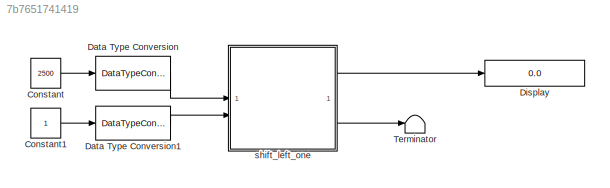
MODEL slx_7b7651741419
KIND model
CONFIG AbsTol = auto
CONFIG EnableMultiTasking = off
CONFIG FixedStep = auto
CONFIG MaxStep = auto
CONFIG MinStep = auto
CONFIG RelTol = 1e-3
CONFIG SampleTimeConstraint = Unconstrained
CONFIG SolverName = FixedStepDiscrete
CONFIG StartTime = 0.0
CONFIG StopTime = 20/125e6
BLOCK [Constant] Constant
  OutDataTypeStr = int16
  SampleTime = 1/125e6
  Value = 2500
BLOCK [Constant] Constant1
  OutDataTypeStr = boolean
  SampleTime = 1/125e6
BLOCK [DataTypeConversion] Data Type Conversion
  OutDataTypeStr = int16
  RndMeth = Floor
  SaturateOnIntegerOverflow = off
BLOCK [DataTypeConversion] Data Type Conversion1
  OutDataTypeStr = boolean
  RndMeth = Floor
  SaturateOnIntegerOverflow = off
BLOCK [Display] Display
  Decimation = 1
  Format = long
BLOCK [Terminator] Terminator
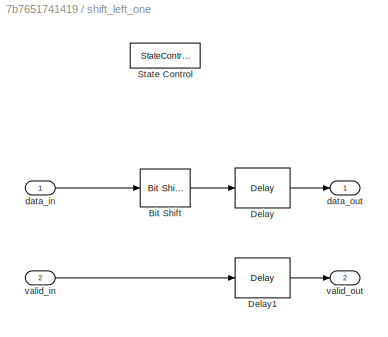
BLOCK [SubSystem] shift_left_one
  TreatAsAtomicUnit = on
BLOCK [Reference] shift_left_one/Bit Shift  REF=hdlsllib/Logic and Bit
Operations/Bit Shift
  SourceBlock = hdlsllib/Logic and Bit\nOperations/Bit Shift
  SourceType = Bit Shift
BLOCK [Delay] shift_left_one/Delay
  DelayLength = 1
  InitialCondition = 0
  InputPortMap = u0
  UseCircularBuffer = on
  UserDataPersistent = on
BLOCK [Delay] shift_left_one/Delay1
  DelayLength = 1
  InitialCondition = 0
  InputPortMap = u0
  UseCircularBuffer = on
  UserDataPersistent = on
BLOCK [StateControl] shift_left_one/State Control
  StateControl = Synchronous
BLOCK [Inport] shift_left_one/data_in
BLOCK [Outport] shift_left_one/data_out
BLOCK [Inport] shift_left_one/valid_in
  Port = 2
BLOCK [Outport] shift_left_one/valid_out
  Port = 2
LINE Constant1:1 -> Data Type Conversion1:1
LINE Constant:1 -> Data Type Conversion:1
LINE Data Type Conversion1:1 -> shift_left_one:2
LINE Data Type Conversion:1 -> shift_left_one:1
LINE shift_left_one/Bit Shift:1 -> shift_left_one/Delay:1
LINE shift_left_one/Delay1:1 -> shift_left_one/valid_out:1
LINE shift_left_one/Delay:1 -> shift_left_one/data_out:1
LINE shift_left_one/data_in:1 -> shift_left_one/Bit Shift:1
LINE shift_left_one/valid_in:1 -> shift_left_one/Delay1:1
LINE shift_left_one:1 -> Display:1
LINE shift_left_one:2 -> Terminator:1
